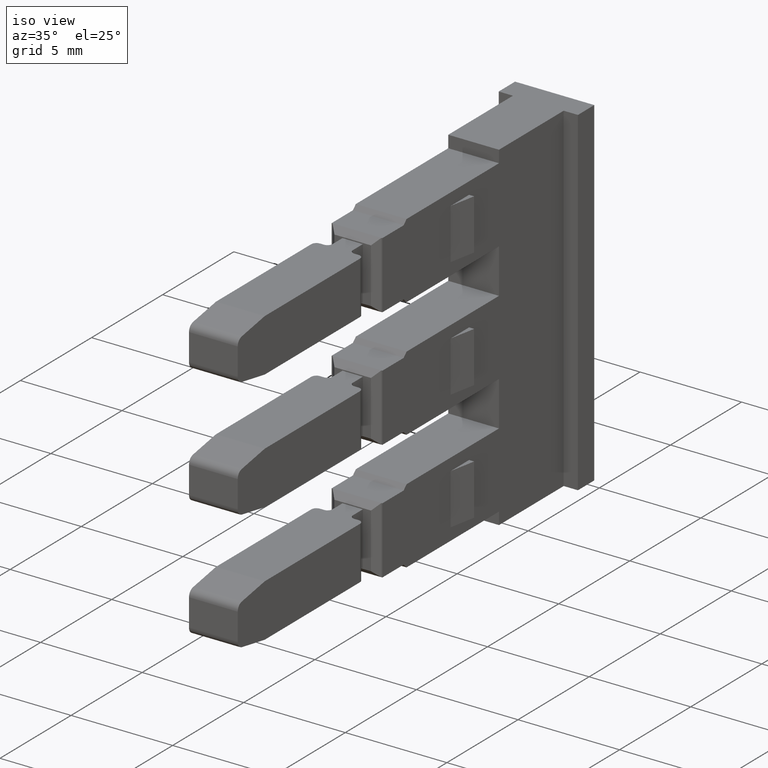
[diagram: clean part render]
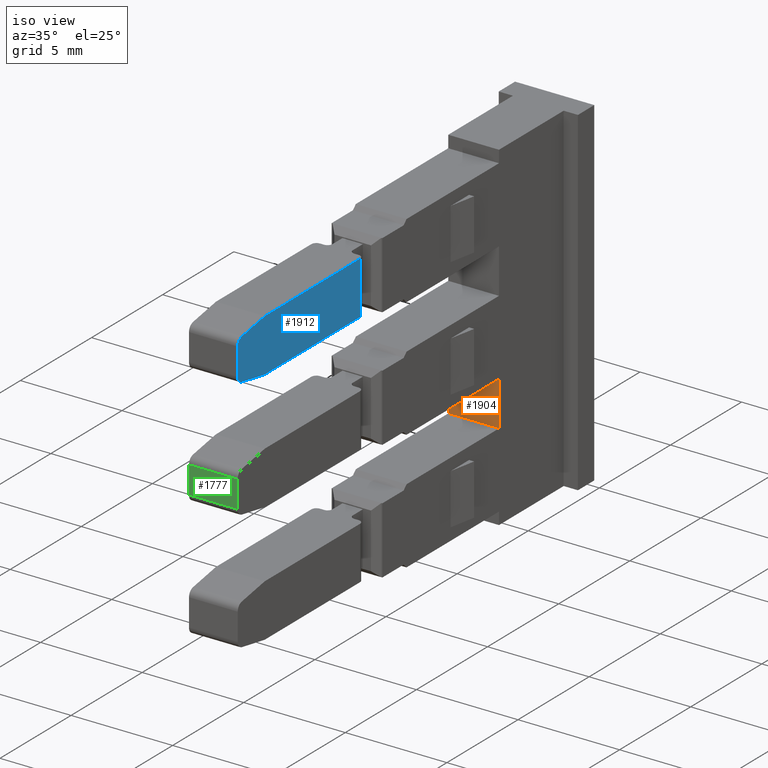
[diagram: same view with three faces highlighted in distinct colors, each labeled with its STEP entity id]
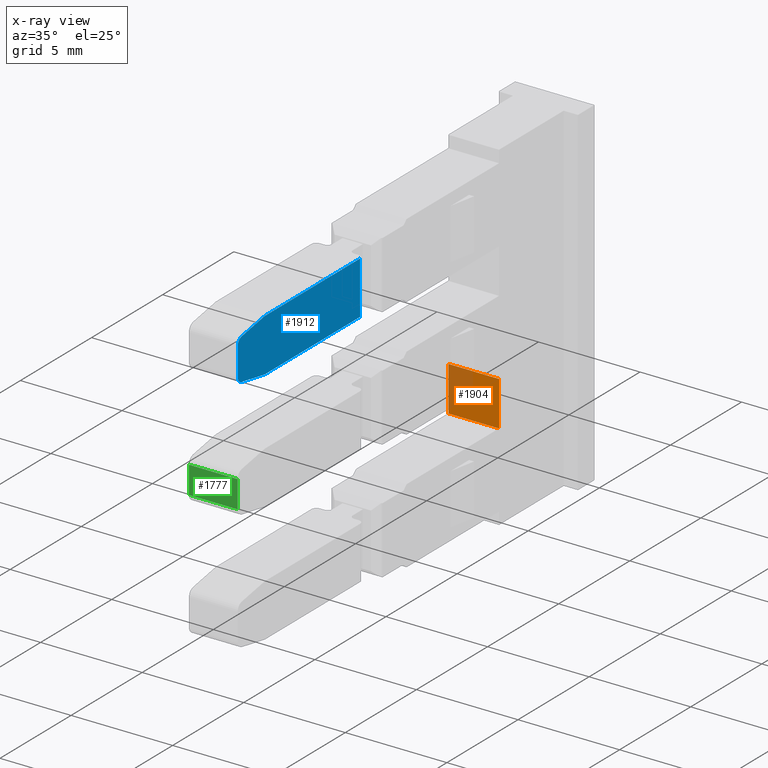
[diagram: x-ray of the same camera — body ghosted, the three highlighted faces saturated]
A machine part, iso view with three faces highlighted in distinct colors.
The next image is the same camera in x-ray (body ghosted, the three faces saturated) — at least one of them is partly hidden behind the body in this view.
Their STEP definitions:

[orange] entity #1904 — the highlighted planar face has unit normal (0, 1, 0).
#30 = VECTOR ( 'NONE', #3666, 1000.000000000000000 ) ;
#47 = VECTOR ( 'NONE', #3610, 1000.000000000000000 ) ;
#53 = VECTOR ( 'NONE', #3671, 1000.000000000000000 ) ;
#215 = VECTOR ( 'NONE', #3725, 1000.000000000000000 ) ;
#221 = AXIS2_PLACEMENT_3D ( 'NONE', #1181, #1180, #1213 ) ;
#1180 = DIRECTION ( 'NONE',  ( 6.401193638283200000E-015, 1.000000000000000000, 5.266048633100518400E-014 ) ) ;
#1181 = CARTESIAN_POINT ( 'NONE',  ( 1456.318071211366000, 1003.994679537520100, -83.64999999998819600 ) ) ;
#1195 = PLANE ( 'NONE',  #221 ) ;
#1213 = DIRECTION ( 'NONE',  ( 0.0000000000000000000, -5.266048633100518400E-014, 1.000000000000000000 ) ) ;
#1219 = FACE_OUTER_BOUND ( 'NONE', #2590, .T. ) ;
#1904 = ADVANCED_FACE ( 'NONE', ( #1219 ), #1195, .F. ) ;
#1967 = EDGE_CURVE ( 'NONE', #2313, #2359, #3589, .T. ) ;
#1986 = EDGE_CURVE ( 'NONE', #2353, #2347, #3650, .T. ) ;
#1992 = EDGE_CURVE ( 'NONE', #2359, #2347, #3663, .T. ) ;
#2007 = EDGE_CURVE ( 'NONE', #2353, #2313, #3722, .T. ) ;
#2308 = ORIENTED_EDGE ( 'NONE', *, *, #1986, .T. ) ;
#2313 = VERTEX_POINT ( 'NONE', #4076 ) ;
#2347 = VERTEX_POINT ( 'NONE', #4113 ) ;
#2353 = VERTEX_POINT ( 'NONE', #4104 ) ;
#2359 = VERTEX_POINT ( 'NONE', #4163 ) ;
#2590 = EDGE_LOOP ( 'NONE', ( #2308, #2700, #2747, #2706 ) ) ;
#2700 = ORIENTED_EDGE ( 'NONE', *, *, #1992, .F. ) ;
#2706 = ORIENTED_EDGE ( 'NONE', *, *, #2007, .F. ) ;
#2747 = ORIENTED_EDGE ( 'NONE', *, *, #1967, .F. ) ;
#3589 = LINE ( 'NONE', #3602, #47 ) ;
#3602 = CARTESIAN_POINT ( 'NONE',  ( 1456.769071211365800, 1003.994679537520100, -83.64999999998819600 ) ) ;
#3610 = DIRECTION ( 'NONE',  ( 0.0000000000000000000, -5.266048633100518400E-014, 1.000000000000000000 ) ) ;
#3636 = CARTESIAN_POINT ( 'NONE',  ( 1459.267071211366600, 1003.994679537520300, -100.1158559843420100 ) ) ;
#3650 = LINE ( 'NONE', #3636, #30 ) ;
#3655 = CARTESIAN_POINT ( 'NONE',  ( 1516.460390188475000, 1003.994679537513400, -87.24999999998709700 ) ) ;
#3663 = LINE ( 'NONE', #3655, #53 ) ;
#3666 = DIRECTION ( 'NONE',  ( 8.167936110773030400E-029, -1.045690813403665900E-042, 1.000000000000000000 ) ) ;
#3671 = DIRECTION ( 'NONE',  ( 1.000000000000000000, -1.591874026890570400E-028, -1.715124499443520100E-015 ) ) ;
#3722 = LINE ( 'NONE', #3724, #215 ) ;
#3724 = CARTESIAN_POINT ( 'NONE',  ( 1456.318071211366000, 1003.994679537513200, -89.44999999998901800 ) ) ;
#3725 = DIRECTION ( 'NONE',  ( -1.000000000000000000, 6.401193638283200000E-015, 3.370899700909298000E-028 ) ) ;
#4076 = CARTESIAN_POINT ( 'NONE',  ( 1456.769071211365800, 1003.994679537513400, -89.44999999998901800 ) ) ;
#4104 = CARTESIAN_POINT ( 'NONE',  ( 1459.267071211366300, 1003.994679537513400, -89.44999999998897500 ) ) ;
#4113 = CARTESIAN_POINT ( 'NONE',  ( 1459.267071211366600, 1003.994679537511200, -87.24999999998686900 ) ) ;
#4163 = CARTESIAN_POINT ( 'NONE',  ( 1456.769071211365800, 1003.994679537513400, -87.24999999998694000 ) ) ;

[blue] entity #1912 — the highlighted planar face has unit normal (1, -0, 0).
#12 = VECTOR ( 'NONE', #3751, 1000.000000000000100 ) ;
#26 = VECTOR ( 'NONE', #3645, 1000.000000000000000 ) ;
#36 = VECTOR ( 'NONE', #3667, 1000.000000000000000 ) ;
#56 = CIRCLE ( 'NONE', #57, 0.3499999999999892100 ) ;
#57 = AXIS2_PLACEMENT_3D ( 'NONE', #3593, #3594, #3595 ) ;
#229 = AXIS2_PLACEMENT_3D ( 'NONE', #1197, #1204, #1206 ) ;
#243 = CIRCLE ( 'NONE', #261, 0.3499999999999753300 ) ;
#247 = VECTOR ( 'NONE', #3757, 1000.000000000000000 ) ;
#261 = AXIS2_PLACEMENT_3D ( 'NONE', #3572, #3575, #3576 ) ;
#262 = VECTOR ( 'NONE', #3764, 999.9999999999998900 ) ;
#264 = VECTOR ( 'NONE', #3682, 1000.000000000000000 ) ;
#1196 = FACE_OUTER_BOUND ( 'NONE', #2532, .T. ) ;
#1197 = CARTESIAN_POINT ( 'NONE',  ( 1459.217905001598200, 988.6778926471699800, -95.97915138482639500 ) ) ;
#1204 = DIRECTION ( 'NONE',  ( 1.000000000000000000, -0.0000000000000000000, 0.0000000000000000000 ) ) ;
#1205 = PLANE ( 'NONE',  #229 ) ;
#1206 = DIRECTION ( 'NONE',  ( 0.0000000000000000000, 0.0000000000000000000, -1.000000000000000000 ) ) ;
#1912 = ADVANCED_FACE ( 'NONE', ( #1196 ), #1205, .T. ) ;
#1948 = EDGE_CURVE ( 'NONE', #2368, #2320, #243, .T. ) ;
#1971 = EDGE_CURVE ( 'NONE', #2309, #2348, #56, .T. ) ;
#1984 = EDGE_CURVE ( 'NONE', #2361, #2358, #3643, .T. ) ;
#1990 = EDGE_CURVE ( 'NONE', #2368, #2348, #3656, .T. ) ;
#2003 = EDGE_CURVE ( 'NONE', #2361, #2327, #3694, .T. ) ;
#2008 = EDGE_CURVE ( 'NONE', #2357, #2358, #3693, .T. ) ;
#2009 = EDGE_CURVE ( 'NONE', #2309, #2357, #3729, .T. ) ;
#2011 = EDGE_CURVE ( 'NONE', #2327, #2320, #3745, .T. ) ;
#2309 = VERTEX_POINT ( 'NONE', #4389 ) ;
#2320 = VERTEX_POINT ( 'NONE', #4080 ) ;
#2327 = VERTEX_POINT ( 'NONE', #4106 ) ;
#2348 = VERTEX_POINT ( 'NONE', #4155 ) ;
#2357 = VERTEX_POINT ( 'NONE', #4102 ) ;
#2358 = VERTEX_POINT ( 'NONE', #4160 ) ;
#2361 = VERTEX_POINT ( 'NONE', #4135 ) ;
#2368 = VERTEX_POINT ( 'NONE', #4107 ) ;
#2532 = EDGE_LOOP ( 'NONE', ( #2744, #2709, #2742, #2729, #2734, #2724, #2708, #2727 ) ) ;
#2708 = ORIENTED_EDGE ( 'NONE', *, *, #1971, .F. ) ;
#2709 = ORIENTED_EDGE ( 'NONE', *, *, #1984, .F. ) ;
#2724 = ORIENTED_EDGE ( 'NONE', *, *, #1990, .T. ) ;
#2727 = ORIENTED_EDGE ( 'NONE', *, *, #2009, .T. ) ;
#2729 = ORIENTED_EDGE ( 'NONE', *, *, #2011, .T. ) ;
#2734 = ORIENTED_EDGE ( 'NONE', *, *, #1948, .F. ) ;
#2742 = ORIENTED_EDGE ( 'NONE', *, *, #2003, .T. ) ;
#2744 = ORIENTED_EDGE ( 'NONE', *, *, #2008, .T. ) ;
#3572 = CARTESIAN_POINT ( 'NONE',  ( 1459.217905001598200, 986.0446795375389700, -78.82879612739110100 ) ) ;
#3575 = DIRECTION ( 'NONE',  ( -1.000000000000000000, -5.817690394031370500E-016, -1.715124499442885300E-015 ) ) ;
#3576 = DIRECTION ( 'NONE',  ( 0.0000000000000000000, 0.0000000000000000000, -1.000000000000000000 ) ) ;
#3593 = CARTESIAN_POINT ( 'NONE',  ( 1459.217905001598200, 986.0446795375389700, -80.17192042437014300 ) ) ;
#3594 = DIRECTION ( 'NONE',  ( -1.000000000000000000, -5.817690394031370500E-016, -1.715124499442885300E-015 ) ) ;
#3595 = DIRECTION ( 'NONE',  ( 0.0000000000000000000, 0.0000000000000000000, -1.000000000000000000 ) ) ;
#3635 = CARTESIAN_POINT ( 'NONE',  ( 1459.217905001598200, 994.2959515111355100, -80.79999999999005000 ) ) ;
#3640 = CARTESIAN_POINT ( 'NONE',  ( 1459.217905001598200, 985.6946795375389500, -80.17192042437015700 ) ) ;
#3643 = LINE ( 'NONE', #3635, #26 ) ;
#3645 = DIRECTION ( 'NONE',  ( -0.0000000000000000000, -0.0000000000000000000, -1.000000000000000000 ) ) ;
#3656 = LINE ( 'NONE', #3640, #36 ) ;
#3667 = DIRECTION ( 'NONE',  ( -0.0000000000000000000, -0.0000000000000000000, -1.000000000000000000 ) ) ;
#3682 = DIRECTION ( 'NONE',  ( -0.0000000000000000000, -1.000000000000000000, -0.0000000000000000000 ) ) ;
#3693 = LINE ( 'NONE', #3748, #247 ) ;
#3694 = LINE ( 'NONE', #3695, #264 ) ;
#3695 = CARTESIAN_POINT ( 'NONE',  ( 1459.217905001598200, 988.6778926471699800, -78.20000000020816300 ) ) ;
#3729 = LINE ( 'NONE', #3773, #12 ) ;
#3741 = CARTESIAN_POINT ( 'NONE',  ( 1459.217905001598200, 987.5951899124289600, -78.20000000026969600 ) ) ;
#3745 = LINE ( 'NONE', #3741, #262 ) ;
#3748 = CARTESIAN_POINT ( 'NONE',  ( 1459.217905001598200, 988.6778926471699800, -80.79999999998860000 ) ) ;
#3751 = DIRECTION ( 'NONE',  ( -0.0000000000000000000, 0.9848077530122103500, -0.1736481776669172600 ) ) ;
#3757 = DIRECTION ( 'NONE',  ( 0.0000000000000000000, 1.000000000000000000, 0.0000000000000000000 ) ) ;
#3764 = DIRECTION ( 'NONE',  ( -0.0000000000000000000, -0.9848077530122177900, -0.1736481776668759300 ) ) ;
#3773 = CARTESIAN_POINT ( 'NONE',  ( 1459.217905001598200, 987.5911261469250300, -80.79999999999003500 ) ) ;
#4080 = CARTESIAN_POINT ( 'NONE',  ( 1459.217905001598200, 985.9839026753555800, -78.48411341383685200 ) ) ;
#4102 = CARTESIAN_POINT ( 'NONE',  ( 1459.217905001598200, 987.5911261469250300, -80.79999999998810300 ) ) ;
#4106 = CARTESIAN_POINT ( 'NONE',  ( 1459.217905001598200, 987.5951899123730300, -78.20000000015427600 ) ) ;
#4107 = CARTESIAN_POINT ( 'NONE',  ( 1459.217905001598200, 985.6946795375389500, -78.82879612739110100 ) ) ;
#4135 = CARTESIAN_POINT ( 'NONE',  ( 1459.217905001598200, 994.2959515111355100, -78.20000000013769200 ) ) ;
#4155 = CARTESIAN_POINT ( 'NONE',  ( 1459.217905001598200, 985.6946795375389500, -80.17192042437014300 ) ) ;
#4160 = CARTESIAN_POINT ( 'NONE',  ( 1459.217905001598200, 994.2959515111355100, -80.79999999998932500 ) ) ;
#4389 = CARTESIAN_POINT ( 'NONE',  ( 1459.217905001598200, 985.9839026753554700, -80.51660313792443400 ) ) ;

[green] entity #1777 — the highlighted planar face has unit normal (-0, 1, 0).
#119 = AXIS2_PLACEMENT_3D ( 'NONE', #711, #704, #692 ) ;
#692 = DIRECTION ( 'NONE',  ( -1.000000000000000000, -5.817690394031371500E-016, 0.0000000000000000000 ) ) ;
#704 = DIRECTION ( 'NONE',  ( -5.817690394031371500E-016, 1.000000000000000000, 0.0000000000000000000 ) ) ;
#708 = FACE_OUTER_BOUND ( 'NONE', #2646, .T. ) ;
#710 = PLANE ( 'NONE',  #119 ) ;
#711 = CARTESIAN_POINT ( 'NONE',  ( 1447.990005405424200, 985.6946795375389500, -86.07192042437016300 ) ) ;
#1362 = ORIENTED_EDGE ( 'NONE', *, *, #2179, .F. ) ;
#1397 = ORIENTED_EDGE ( 'NONE', *, *, #2182, .F. ) ;
#1426 = ORIENTED_EDGE ( 'NONE', *, *, #2158, .F. ) ;
#1436 = ORIENTED_EDGE ( 'NONE', *, *, #2161, .F. ) ;
#1585 = VECTOR ( 'NONE', #3168, 1000.000000000000000 ) ;
#1590 = VECTOR ( 'NONE', #3169, 1000.000000000000000 ) ;
#1628 = VECTOR ( 'NONE', #3274, 1000.000000000000000 ) ;
#1631 = VECTOR ( 'NONE', #3285, 1000.000000000000000 ) ;
#1777 = ADVANCED_FACE ( 'NONE', ( #708 ), #710, .F. ) ;
#2158 = EDGE_CURVE ( 'NONE', #2480, #2453, #3196, .T. ) ;
#2161 = EDGE_CURVE ( 'NONE', #2513, #2473, #3170, .T. ) ;
#2179 = EDGE_CURVE ( 'NONE', #2473, #2480, #3242, .T. ) ;
#2182 = EDGE_CURVE ( 'NONE', #2453, #2513, #3234, .T. ) ;
#2453 = VERTEX_POINT ( 'NONE', #4273 ) ;
#2473 = VERTEX_POINT ( 'NONE', #4262 ) ;
#2480 = VERTEX_POINT ( 'NONE', #4268 ) ;
#2513 = VERTEX_POINT ( 'NONE', #4310 ) ;
#2646 = EDGE_LOOP ( 'NONE', ( #1362, #1436, #1397, #1426 ) ) ;
#3168 = DIRECTION ( 'NONE',  ( -1.000000000000000000, -5.817690394031370500E-016, -1.715124499442885300E-015 ) ) ;
#3169 = DIRECTION ( 'NONE',  ( 1.000000000000000000, 5.817690394031370500E-016, 1.715124499442885300E-015 ) ) ;
#3170 = LINE ( 'NONE', #3179, #1590 ) ;
#3179 = CARTESIAN_POINT ( 'NONE',  ( 1447.990005405424200, 985.6946795375389500, -84.72879612739112100 ) ) ;
#3196 = LINE ( 'NONE', #3204, #1585 ) ;
#3204 = CARTESIAN_POINT ( 'NONE',  ( 1447.990005405424200, 985.6946795375389500, -86.07192042437016300 ) ) ;
#3234 = LINE ( 'NONE', #3240, #1628 ) ;
#3240 = CARTESIAN_POINT ( 'NONE',  ( 1456.818237421122100, 985.6946795375389500, -86.07192042437016300 ) ) ;
#3242 = LINE ( 'NONE', #3264, #1631 ) ;
#3264 = CARTESIAN_POINT ( 'NONE',  ( 1459.217905001598200, 985.6946795375389500, -86.07192042437016300 ) ) ;
#3274 = DIRECTION ( 'NONE',  ( 0.0000000000000000000, 0.0000000000000000000, 1.000000000000000000 ) ) ;
#3285 = DIRECTION ( 'NONE',  ( -0.0000000000000000000, -0.0000000000000000000, -1.000000000000000000 ) ) ;
#4262 = CARTESIAN_POINT ( 'NONE',  ( 1459.217905001598200, 985.6946795375389500, -84.72879612739110700 ) ) ;
#4268 = CARTESIAN_POINT ( 'NONE',  ( 1459.217905001598200, 985.6946795375389500, -86.07192042437014800 ) ) ;
#4273 = CARTESIAN_POINT ( 'NONE',  ( 1456.818237421122100, 985.6946795375389500, -86.07192042437014800 ) ) ;
#4310 = CARTESIAN_POINT ( 'NONE',  ( 1456.818237421122100, 985.6946795375389500, -84.72879612739110700 ) ) ;